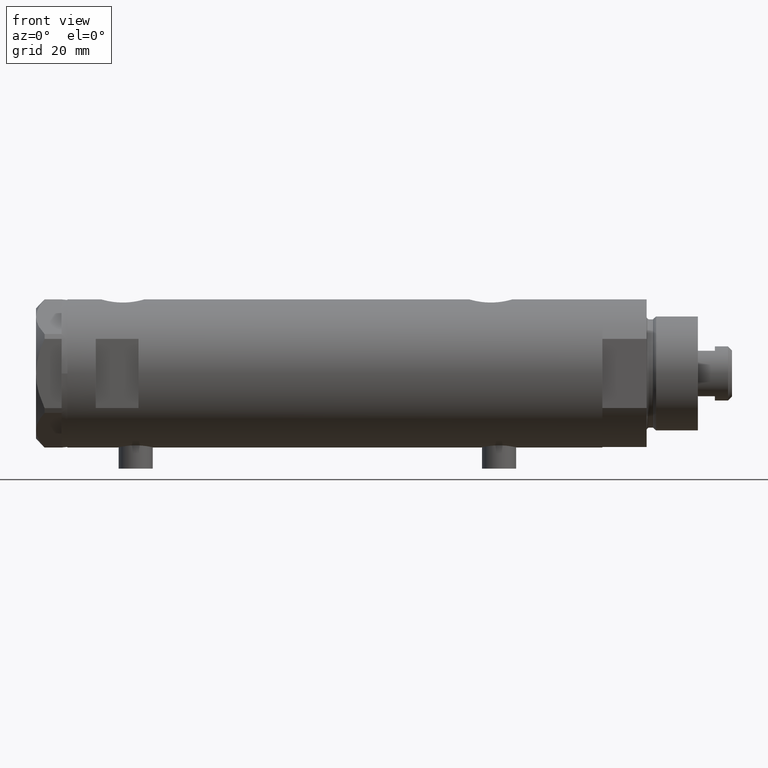
[diagram: clean part render]
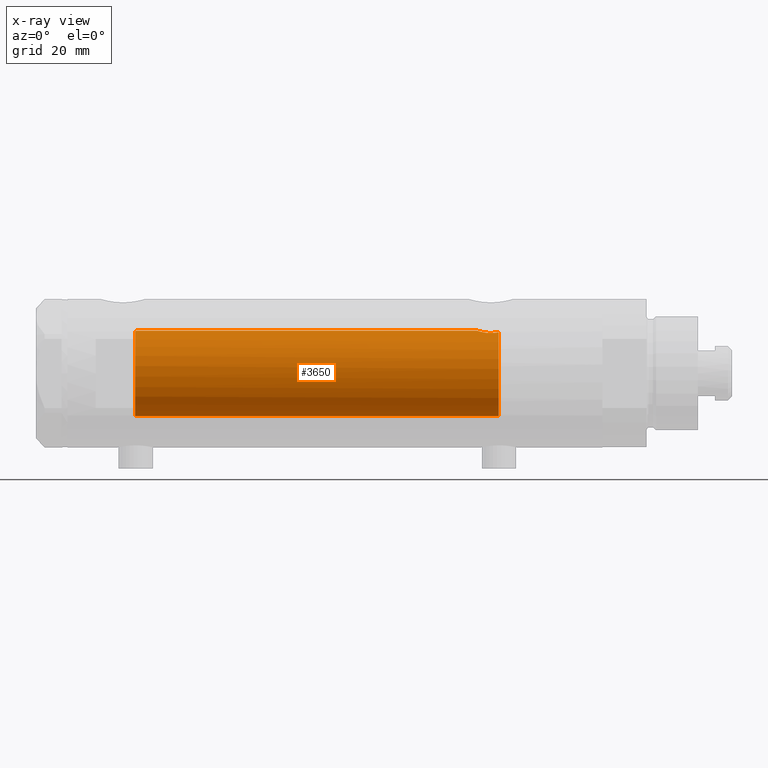
[diagram: x-ray — body ghosted, one internal face saturated and labeled with its STEP entity id]
A machine part, front view, then the same camera in x-ray: the body is ghosted and one INTERNAL B-rep face — a face not visible from any outside direction — is saturated and labeled: STEP entity #3650.
In plain terms, the highlighted cylindrical surface (partial cylindrical patch) has radius 15 mm, axis along (1, 0, -0).
Its self-contained STEP definition (entity closure, byte-faithful):
#45 = DIRECTION ( 'NONE',  ( -1.000000000000000000, 0.000000000000000000, 0.000000000000000000 ) ) ;
#97 = LINE ( 'NONE', #876, #1884 ) ;
#134 = EDGE_CURVE ( 'NONE', #4753, #2087, #2447, .T. ) ;
#150 = DIRECTION ( 'NONE',  ( 0.000000000000000000, 0.000000000000000000, 1.000000000000000000 ) ) ;
#160 = CARTESIAN_POINT ( 'NONE',  ( 14.30602371879161439, -4.510400617436904014, -56.58665028800271557 ) ) ;
#182 = CARTESIAN_POINT ( 'NONE',  ( 14.84733308118440220, -2.144376633039216440, -50.37751912952715116 ) ) ;
#247 = CARTESIAN_POINT ( 'NONE',  ( 0.000000000000000000, 0.000000000000000000, 93.95000000000001705 ) ) ;
#347 = CARTESIAN_POINT ( 'NONE',  ( 15.00000000000000178, -0.3999014018875933218, 69.58499999999999375 ) ) ;
#487 = DIRECTION ( 'NONE',  ( -0.000000000000000000, -0.000000000000000000, -1.000000000000000000 ) ) ;
#497 = ORIENTED_EDGE ( 'NONE', *, *, #1716, .F. ) ;
#571 = CARTESIAN_POINT ( 'NONE',  ( 14.20819413761015504, -4.809312895991456394, -55.51713251522167525 ) ) ;
#577 = DIRECTION ( 'NONE',  ( -0.000000000000000000, -0.000000000000000000, -1.000000000000000000 ) ) ;
#596 = CARTESIAN_POINT ( 'NONE',  ( 14.18786347641749757, -4.868757996482117711, -54.63322300400292875 ) ) ;
#602 = CYLINDRICAL_SURFACE ( 'NONE', #4406, 15.00000000000000000 ) ;
#837 = ORIENTED_EDGE ( 'NONE', *, *, #134, .F. ) ;
#876 = CARTESIAN_POINT ( 'NONE',  ( 15.00000000000000000, 1.836970198721029589E-15, 93.95000000000001705 ) ) ;
#919 = FACE_OUTER_BOUND ( 'NONE', #2532, .T. ) ;
#959 = ORIENTED_EDGE ( 'NONE', *, *, #3919, .F. ) ;
#970 = CARTESIAN_POINT ( 'NONE',  ( 14.72015646623405871, -2.909233045280601893, -50.82572079632731743 ) ) ;
#1164 = VERTEX_POINT ( 'NONE', #1951 ) ;
#1186 = CIRCLE ( 'NONE', #2747, 15.00000000000000000 ) ;
#1341 = CARTESIAN_POINT ( 'NONE',  ( 14.33349657381506681, -4.422893686125041413, -56.78827841538883803 ) ) ;
#1365 = CARTESIAN_POINT ( 'NONE',  ( 14.42775250319760083, -4.105775281508734054, -57.36911445102909113 ) ) ;
#1560 = VERTEX_POINT ( 'NONE', #2238 ) ;
#1579 = LINE ( 'NONE', #1959, #4785 ) ;
#1658 = CARTESIAN_POINT ( 'NONE',  ( 14.19797987272029438, -4.839174951492910104, -55.29741451501411831 ) ) ;
#1668 = DIRECTION ( 'NONE',  ( 1.000000000000000000, 0.000000000000000000, 0.000000000000000000 ) ) ;
#1674 = CARTESIAN_POINT ( 'NONE',  ( 14.25856516724843992, -4.658255869285516937, -56.17044016644937443 ) ) ;
#1694 = CARTESIAN_POINT ( 'NONE',  ( 14.92307637240703677, -1.532123959568890026, -50.12726557582075770 ) ) ;
#1716 = EDGE_CURVE ( 'NONE', #1164, #2137, #1579, .T. ) ;
#1827 = CARTESIAN_POINT ( 'NONE',  ( 14.98404828787190901, -0.7909490205761857684, 69.63356230794191504 ) ) ;
#1884 = VECTOR ( 'NONE', #3118, 1000.000000000000000 ) ;
#1951 = CARTESIAN_POINT ( 'NONE',  ( -15.00000000000000000, 0.000000000000000000, 70.15000000000000568 ) ) ;
#1959 = CARTESIAN_POINT ( 'NONE',  ( -15.00000000000000000, 0.000000000000000000, 93.95000000000001705 ) ) ;
#2005 = EDGE_CURVE ( 'NONE', #4447, #2137, #4399, .T. ) ;
#2051 = CARTESIAN_POINT ( 'NONE',  ( 14.82638779339053947, -2.275571356824482638, 70.15000000000000568 ) ) ;
#2059 = CARTESIAN_POINT ( 'NONE',  ( 14.18781489734108270, -4.868896704194245473, -54.85545969036063241 ) ) ;
#2066 = DIRECTION ( 'NONE',  ( -1.000000000000000000, 0.000000000000000000, 0.000000000000000000 ) ) ;
#2087 = VERTEX_POINT ( 'NONE', #2051 ) ;
#2113 = CARTESIAN_POINT ( 'NONE',  ( 14.96064712090283777, -1.106639041422191827, -50.00738179736369915 ) ) ;
#2137 = VERTEX_POINT ( 'NONE', #3873 ) ;
#2162 = CARTESIAN_POINT ( 'NONE',  ( 14.82638779339053947, -2.275571356824482638, 70.15000000000000568 ) ) ;
#2238 = CARTESIAN_POINT ( 'NONE',  ( 15.00000000000000000, 5.959273468635536151E-16, -49.88499999999999801 ) ) ;
#2245 = B_SPLINE_CURVE_WITH_KNOTS ( 'NONE', 3,
 ( #3949, #1365, #3242, #1341, #160, #1674, #2838, #571, #1658, #2059, #596, #3187, #4343, #3581, #4679, #4284, #3899, #2857, #3170, #4746, #970, #2406, #182, #4659, #1694, #2113, #4705, #4729, #3266, #2460 ),
 .UNSPECIFIED., .F., .F.,
 ( 4, 2, 2, 2, 2, 2, 2, 2, 2, 2, 2, 2, 2, 2, 4 ),
 ( 0.004672505804584289359, 0.005337629501999303222, 0.006002753199414317953, 0.006667876896829330949, 0.007333000594244345680, 0.007998124291659358676, 0.008663247989074373406, 0.009328371686489388137, 0.009993495383904402868, 0.01132374277873441151, 0.01265399017356442016, 0.01331911387097942448, 0.01398423756839442880, 0.01464936126580943312, 0.01531448496322443745 ),
 .UNSPECIFIED. ) ;
#2276 = AXIS2_PLACEMENT_3D ( 'NONE', #3847, #2312, #45 ) ;
#2312 = DIRECTION ( 'NONE',  ( 0.000000000000000000, 0.000000000000000000, -1.000000000000000000 ) ) ;
#2396 = ORIENTED_EDGE ( 'NONE', *, *, #4370, .T. ) ;
#2406 = CARTESIAN_POINT ( 'NONE',  ( 14.81710879718117546, -2.343063746046468054, -50.48067662538952050 ) ) ;
#2447 = B_SPLINE_CURVE_WITH_KNOTS ( 'NONE', 3,
 ( #3318, #347, #1827, #2986, #4853, #3717, #2541, #2162 ),
 .UNSPECIFIED., .F., .F.,
 ( 4, 2, 2, 4 ),
 ( 0.000000000000000000, 0.001182100180564259889, 0.001773150270846394604, 0.002364200361128529319 ),
 .UNSPECIFIED. ) ;
#2460 = CARTESIAN_POINT ( 'NONE',  ( 15.00000000000000000, 5.959273468635536151E-16, -49.88499999999999801 ) ) ;
#2532 = EDGE_LOOP ( 'NONE', ( #837, #3164, #959, #3658, #497, #2396 ) ) ;
#2541 = CARTESIAN_POINT ( 'NONE',  ( 14.85289483991917692, -2.102865829523694607, 70.05860377881609224 ) ) ;
#2747 = AXIS2_PLACEMENT_3D ( 'NONE', #3545, #150, #1668 ) ;
#2838 = CARTESIAN_POINT ( 'NONE',  ( 14.23846660849503465, -4.718934182878722794, -55.95401121469808459 ) ) ;
#2857 = CARTESIAN_POINT ( 'NONE',  ( 14.42796883436190214, -4.108435602805831088, -52.10726922759030799 ) ) ;
#2986 = CARTESIAN_POINT ( 'NONE',  ( 14.93900636919599556, -1.364886281976674942, 69.77622504971313333 ) ) ;
#3118 = DIRECTION ( 'NONE',  ( -0.000000000000000000, -0.000000000000000000, -1.000000000000000000 ) ) ;
#3164 = ORIENTED_EDGE ( 'NONE', *, *, #3836, .T. ) ;
#3170 = CARTESIAN_POINT ( 'NONE',  ( 14.49994286062941562, -3.853373987417223479, -51.74743896782911889 ) ) ;
#3187 = CARTESIAN_POINT ( 'NONE',  ( 14.19858338301463441, -4.837406781463696070, -54.18614104090499239 ) ) ;
#3242 = CARTESIAN_POINT ( 'NONE',  ( 14.39424372609267877, -4.221002267729138779, -57.17893131093290293 ) ) ;
#3266 = CARTESIAN_POINT ( 'NONE',  ( 15.00000000000000000, -0.2216692655473431750, -49.88499999999999091 ) ) ;
#3267 = CARTESIAN_POINT ( 'NONE',  ( 15.00000000000000000, 0.000000000000000000, 69.58500000000000796 ) ) ;
#3318 = CARTESIAN_POINT ( 'NONE',  ( 15.00000000000000000, 0.000000000000000000, 69.58500000000000796 ) ) ;
#3545 = CARTESIAN_POINT ( 'NONE',  ( 0.000000000000000000, 0.000000000000000000, 70.15000000000000568 ) ) ;
#3581 = CARTESIAN_POINT ( 'NONE',  ( 14.23984499268011028, -4.714778477509579346, -53.53008258614766390 ) ) ;
#3650 = ADVANCED_FACE ( 'NONE', ( #919 ), #602, .F. ) ;
#3658 = ORIENTED_EDGE ( 'NONE', *, *, #2005, .T. ) ;
#3717 = CARTESIAN_POINT ( 'NONE',  ( 14.87720562886504183, -1.924385875533404233, 69.97741675737690059 ) ) ;
#3836 = EDGE_CURVE ( 'NONE', #4753, #1560, #97, .T. ) ;
#3847 = CARTESIAN_POINT ( 'NONE',  ( 0.000000000000000000, 0.000000000000000000, -57.55000000000000426 ) ) ;
#3873 = CARTESIAN_POINT ( 'NONE',  ( -15.00000000000000000, 0.000000000000000000, -57.55000000000000426 ) ) ;
#3899 = CARTESIAN_POINT ( 'NONE',  ( 14.33594561531104006, -4.414979644548145288, -52.69453393419243525 ) ) ;
#3919 = EDGE_CURVE ( 'NONE', #4447, #1560, #2245, .T. ) ;
#3949 = CARTESIAN_POINT ( 'NONE',  ( 14.46277203719950855, -3.978470183374506863, -57.55000000000000426 ) ) ;
#4284 = CARTESIAN_POINT ( 'NONE',  ( 14.30772250772359833, -4.505024017690383076, -52.90010806953220879 ) ) ;
#4343 = CARTESIAN_POINT ( 'NONE',  ( 14.20926245015526135, -4.806160851464706063, -53.96377327795616452 ) ) ;
#4370 = EDGE_CURVE ( 'NONE', #1164, #2087, #1186, .T. ) ;
#4399 = CIRCLE ( 'NONE', #2276, 15.00000000000000000 ) ;
#4406 = AXIS2_PLACEMENT_3D ( 'NONE', #247, #577, #2066 ) ;
#4447 = VERTEX_POINT ( 'NONE', #4527 ) ;
#4527 = CARTESIAN_POINT ( 'NONE',  ( 14.46277203719950855, -3.978470183374506863, -57.55000000000000426 ) ) ;
#4659 = CARTESIAN_POINT ( 'NONE',  ( 14.90017778876744892, -1.739641523727902372, -50.20130925695124802 ) ) ;
#4679 = CARTESIAN_POINT ( 'NONE',  ( 14.25977760983849052, -4.654557688538888627, -53.31736805897653397 ) ) ;
#4705 = CARTESIAN_POINT ( 'NONE',  ( 14.97537530859971966, -0.8874117095427771496, -49.96137464055829014 ) ) ;
#4729 = CARTESIAN_POINT ( 'NONE',  ( 14.99508877558421993, -0.4434836953032583184, -49.90007684727662252 ) ) ;
#4746 = CARTESIAN_POINT ( 'NONE',  ( 14.64727859494137263, -3.248701865452407578, -51.10174013696655493 ) ) ;
#4753 = VERTEX_POINT ( 'NONE', #3267 ) ;
#4785 = VECTOR ( 'NONE', #487, 1000.000000000000000 ) ;
#4853 = CARTESIAN_POINT ( 'NONE',  ( 14.92029983160078643, -1.555365312915180542, 69.83609703141415537 ) ) ;